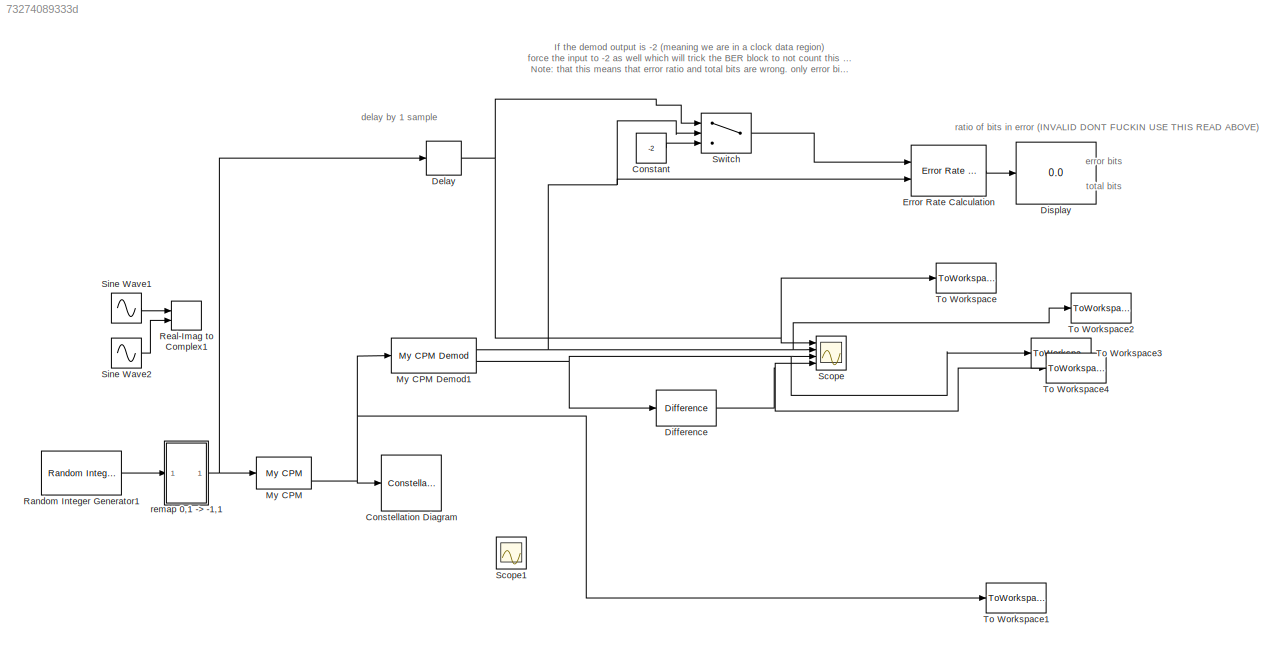
MODEL slx_73274089333d
KIND model
BLOCK [Constant] Constant
  Value = -2
BLOCK [ConstellationDiagram] Constellation Diagram
  Ports = [1]
  ScopeSpecificationString = comm.scopes.ConstellationDiagramBlockCfg('CurrentConfiguration', extmgr.ConfigurationSet(extmgr.Configuration('Core','General UI',true),extmgr.Configuration('Core','Source UI',true),extmgr.Configuration('Sources','WiredSimulink',true),extmgr.Configuration('Sources','Simulink',false),extmgr.Configuration('Sources','File',false),extmgr.Configuration('Sources','Workspace',false),extmgr.Configuration(...<+1686ch>
BLOCK [Delay] Delay
  DelayLength = 1
  InitialCondition = 0
  InputPortMap = u0
  Ports = [1, 1]
BLOCK [Reference] Difference  REF=simulink/Discrete/Difference
  DoSatur = off
  ICPrevInput = 0.0
  InputProcessing = Inherited
  LockScale = off
  OutDataType = fixdt(1, 16)
  OutDataTypeStr = Inherit: Inherit via internal rule
  OutMax = []
  OutMin = []
  OutScaling = 2^-10
  OutputDataTypeScalingMode = Inherit via internal rule
  Ports = [1, 1]
  RndMeth = Floor
  SourceBlock = simulink/Discrete/Difference
  SourceType = Difference
BLOCK [Display] Display
  Decimation = 1
  Ports = [1]
BLOCK [Reference] Error Rate Calculation  REF=commsink2/Error Rate
Calculation
  N = 0
  PMode = Port
  Ports = [2, 1]
  RsMode2 = off
  SourceBlock = commsink2/Error Rate\nCalculation
  SourceType = Error Rate Calculation
  WsName = ErrorVec
  cp_mode = Entire frame
  maxBits = 1e6
  numErr = 100
  st_delay = 0
  stop = off
  subframe = []
BLOCK [Reference] My CPM  REF=siglabs_lib/My CPM
  ClockUpDownFrequency = 100
  FilterBufferLength = 3
  PatternVectorDialog = [ones(1,7)*1 ones(1,7)*2 ones(1,6)*0]
  PatternVectorRepeatDialog = 2
  Ports = [1, 3]
  RotationsPerSym = 1
  SampsPerSym = 10
  SourceBlock = siglabs_lib/My CPM
BLOCK [Reference] My CPM Demod1  REF=siglabs_lib/My CPM Demod
  PatternVectorDialog = [ones(1,7)*1 ones(1,7)*2 ones(1,6)*0]
  PatternVectorRepeatDialog = 2
  Ports = [1, 2]
  RotationsPerSym = 1
  SampsPerSym = 10
  SourceBlock = siglabs_lib/My CPM Demod
BLOCK [Reference] Random Integer Generator1  REF=commrandsrc2/Random Integer
Generator
  Ports = [0, 1]
  SourceBlock = commrandsrc2/Random Integer\nGenerator
  SourceType = Random Integer Generator
  Ts = 1/(10000)
  frameBased = off
  mul = 2
  orient = off
  outDataType = double
  sampPerFrame = 1024
  seed = 42
BLOCK [RealImagToComplex] Real-Imag to Complex1
  Commented = on
  Ports = [2, 1]
BLOCK [Scope] Scope
  Floating = off
  LimitDataPoints = off
  NumInputPorts = 4
  Ports = [4]
  ShowLegends = off
  YMax = 1~-1~250~0.1
  YMin = -1~-3~200~-0.1
  ZoomMode = xonly
BLOCK [Scope] Scope1
  Commented = on
  Floating = off
  NumInputPorts = 1
  Ports = [1]
  SaveName = ScopeData1
  ShowLegends = off
  YMax = 12000
  YMin = 0
BLOCK [Sin] Sine Wave1
  Commented = on
  Frequency = 20000*2*pi
  Phase = 2*pi*90/360
  Ports = [0, 1]
  SampleTime = 2.00E-06
BLOCK [Sin] Sine Wave2
  Commented = on
  Frequency = 20000*2*pi
  Ports = [0, 1]
  SampleTime = 2.00E-06
BLOCK [Switch] Switch
  Criteria = u2 > Threshold
  InputSameDT = off
  SaturateOnIntegerOverflow = off
  Threshold = -2
BLOCK [ToWorkspace] To Workspace
  FixptAsFi = on
  MaxDataPoints = inf
  Ports = [1]
  SampleTime = -1
  Save2DSignal = 3-D array (concatenate along third dimension)
  VariableName = data1
BLOCK [ToWorkspace] To Workspace1
  FixptAsFi = on
  MaxDataPoints = inf
  Ports = [1]
  SampleTime = -1
  Save2DSignal = 3-D array (concatenate along third dimension)
  VariableName = data5
BLOCK [ToWorkspace] To Workspace2
  FixptAsFi = on
  MaxDataPoints = inf
  Ports = [1]
  SampleTime = -1
  Save2DSignal = 3-D array (concatenate along third dimension)
  VariableName = data2
BLOCK [ToWorkspace] To Workspace3
  FixptAsFi = on
  MaxDataPoints = inf
  Ports = [1]
  SampleTime = -1
  Save2DSignal = 3-D array (concatenate along third dimension)
  VariableName = data3
BLOCK [ToWorkspace] To Workspace4
  FixptAsFi = on
  MaxDataPoints = inf
  Ports = [1]
  SampleTime = -1
  Save2DSignal = 3-D array (concatenate along third dimension)
  VariableName = data4
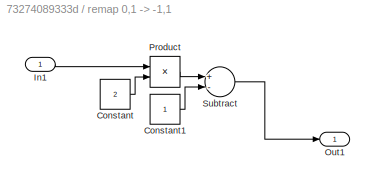
BLOCK [SubSystem] remap 0,1 -> -1,1
  Ports = [1, 1]
  RequestExecContextInheritance = off
BLOCK [Constant] remap 0,1 -> -1,1/Constant
  Value = 2
BLOCK [Constant] remap 0,1 -> -1,1/Constant1
BLOCK [Inport] remap 0,1 -> -1,1/In1
  IconDisplay = Port number
BLOCK [Outport] remap 0,1 -> -1,1/Out1
  IconDisplay = Port number
BLOCK [Product] remap 0,1 -> -1,1/Product
  InputSameDT = off
  OutDataTypeStr = Inherit: Inherit via internal rule
  Ports = [2, 1]
  RndMeth = Floor
  SaturateOnIntegerOverflow = off
BLOCK [Sum] remap 0,1 -> -1,1/Subtract
  InputSameDT = off
  Inputs = +-
  OutDataTypeStr = Inherit: Inherit via internal rule
  Ports = [2, 1]
  SaturateOnIntegerOverflow = off
ANNOTATION (root): If the demod output is -2 (meaning we are in a clock data region) force the input to -2 as well which will trick the BER block to not count this region as error Note: that this means that error ratio and total bits are wrong. only error bits is valid with this switch in place
ANNOTATION (root): delay by 1 sample
ANNOTATION (root): error bits
ANNOTATION (root): ratio of bits in error (INVALID DONT FUCKIN USE THIS READ ABOVE)
ANNOTATION (root): total bits
LINE Constant:1 -> Switch:3
NET Delay:1 -> Scope:1, Switch:1, To Workspace:1
NET Difference:1 -> Scope:4, To Workspace4:1
LINE Error Rate Calculation:1 -> Display:1
NET My CPM Demod1:1 -> Error Rate Calculation:2, Scope:2, Switch:2, To Workspace2:1
NET My CPM Demod1:2 -> Difference:1, Scope:3, To Workspace3:1
NET My CPM:3 -> Constellation Diagram:1, My CPM Demod1:1, To Workspace1:1
LINE Random Integer Generator1:1 -> remap 0,1 -> -1,1:1
LINE Sine Wave1:1 -> Real-Imag to Complex1:1
LINE Sine Wave2:1 -> Real-Imag to Complex1:2
LINE Switch:1 -> Error Rate Calculation:1
LINE remap 0,1 -> -1,1/Constant1:1 -> remap 0,1 -> -1,1/Subtract:2
LINE remap 0,1 -> -1,1/Constant:1 -> remap 0,1 -> -1,1/Product:2
LINE remap 0,1 -> -1,1/In1:1 -> remap 0,1 -> -1,1/Product:1
LINE remap 0,1 -> -1,1/Product:1 -> remap 0,1 -> -1,1/Subtract:1
LINE remap 0,1 -> -1,1/Subtract:1 -> remap 0,1 -> -1,1/Out1:1
NET remap 0,1 -> -1,1:1 -> Delay:1, My CPM:1
note: NET lines group one-source signal fan-out (src -> all destinations, sorted); 1:1 wires keep LINE
